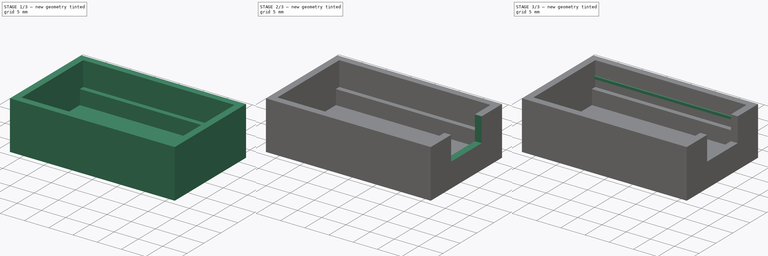
[diagram: build sequence overview — one tinted view per stage of 3, left to right]
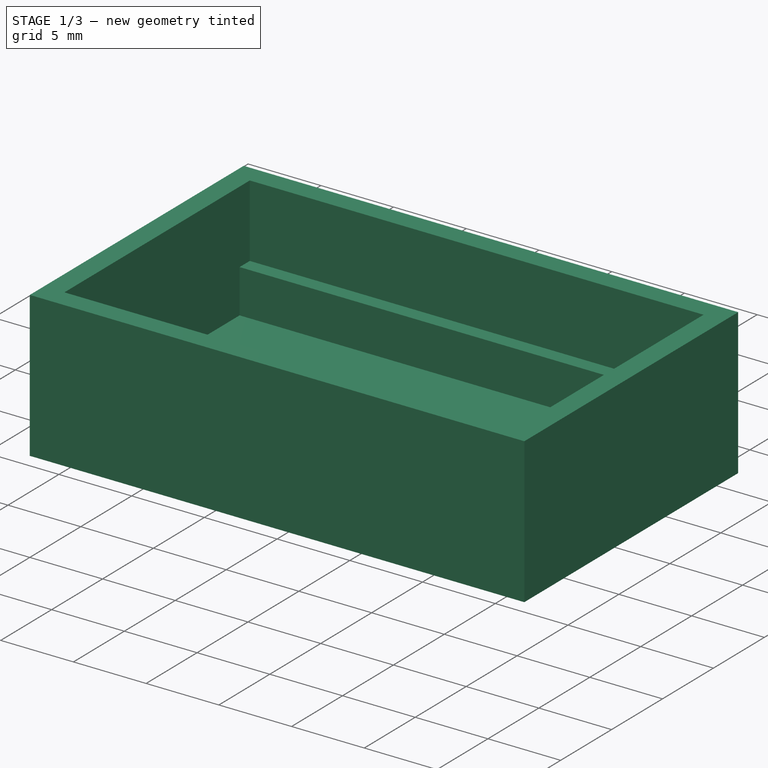
[diagram: stage 1 of 3 — iso view after this stage's code; geometry added in this stage tinted green]
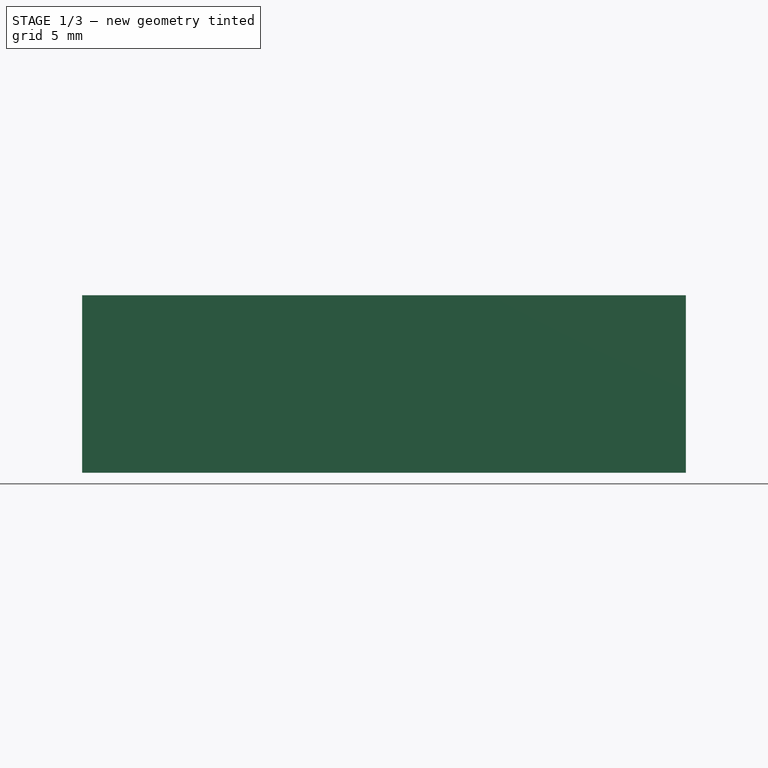
[diagram: stage 1 of 3 — front view after this stage's code; geometry added in this stage tinted green]
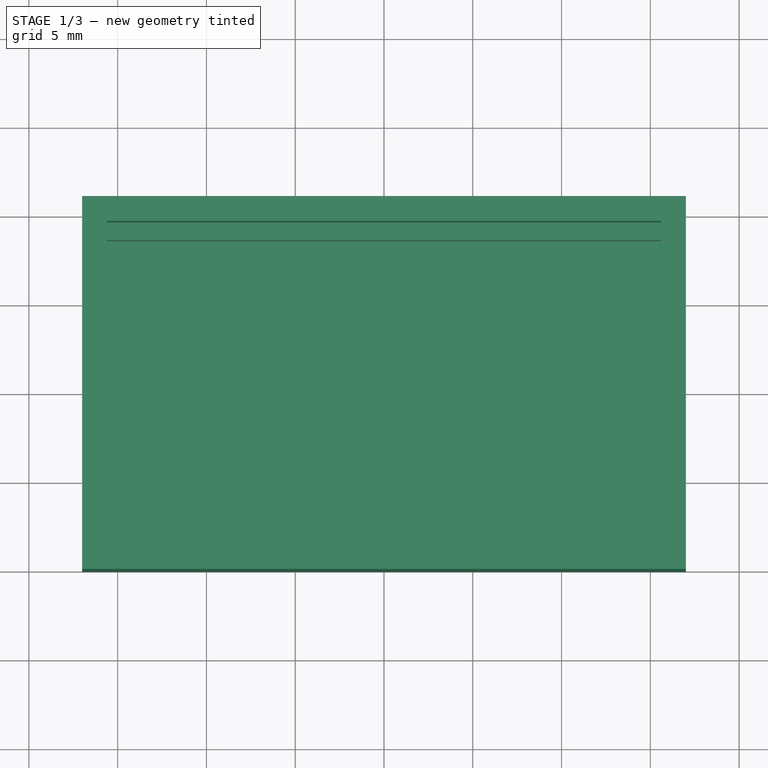
[diagram: stage 1 of 3 — top view after this stage's code; geometry added in this stage tinted green]
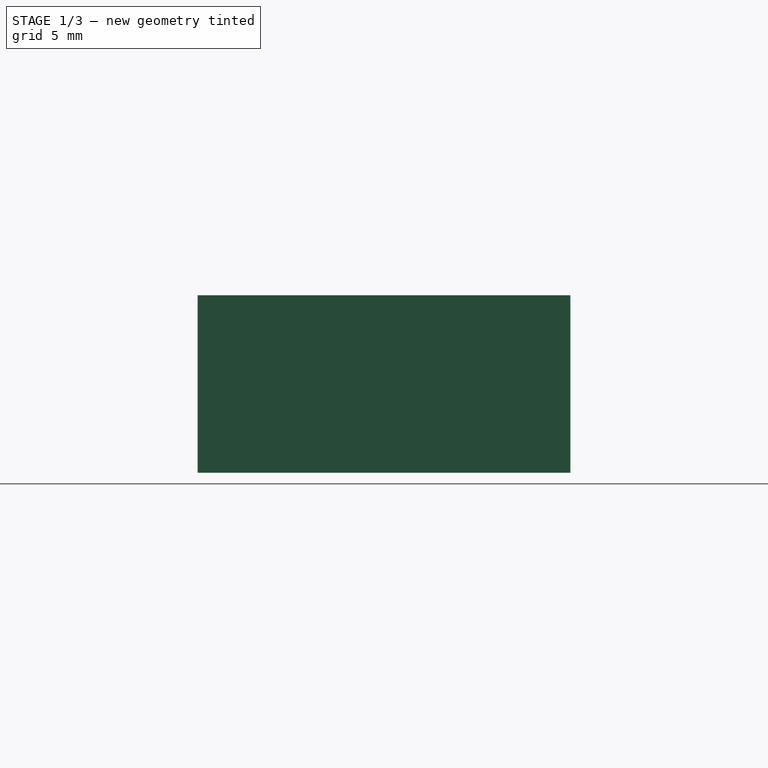
[diagram: stage 1 of 3 — right view after this stage's code; geometry added in this stage tinted green]
FCSTD DOCUMENT  (FreeCAD 0.21R33771 (Git))
Label: крепёж charger
License: All rights reserved
LicenseURL: https://en.wikipedia.org/wiki/All_rights_reserved
objects: Sketcher::SketchObject×8, PartDesign::Pad×5, PartDesign::Pocket×3, PartDesign::Body×1
note: 25 computed .brp shape members not serialized (recipe doc carries the construction recipe); baked Part::Feature solids carry a one-line shape summary decoded from their .brp

FEATURE [Sketcher::SketchObject] Sketch
  FullyConstrained = true
  MapMode = 5
  Support = -> [XY_Plane]
  sketch-geometry (4):
    g0: LineSegment StartX=-17 StartY=21 StartZ=0 EndX=17 EndY=21 EndZ=0
    g1: LineSegment StartX=17 StartY=21 StartZ=0 EndX=17 EndY=0 EndZ=0
    g2: LineSegment StartX=17 StartY=0 StartZ=0 EndX=-17 EndY=0 EndZ=0
    g3: LineSegment StartX=-17 StartY=0 StartZ=0 EndX=-17 EndY=21 EndZ=0
  constraints (11):
    c: Coincident(g0,g1)
    c: Coincident(g1,g2)
    c: Coincident(g2,g3)
    c: Coincident(g3,g0)
    c: Horizontal(g0)
    c: Horizontal(g2)
    c: Vertical(g1)
    c: Vertical(g3)
    c: DistanceX(g0,g0) = 34
    c: DistanceY(g2,g0) = 21
    c: Symmetric(g2,g1,g-1)
FEATURE [PartDesign::Pad] Pad
  Direction = (0,0,1)
  Length = 10
  Length2 = 10
  Profile = -> Sketch
  ReferenceAxis = -> Sketch [N_Axis]
  Type = 0
FEATURE [Sketcher::SketchObject] Sketch001
  ExternalGeometry = -> [Pad]
  FullyConstrained = true
  MapMode = 5
  Placement = pos=(0,0,10) rot=(0,0,1;0rad)
  Support = -> [Pad]
  sketch-geometry (4):
    g0: LineSegment StartX=-15.6 StartY=19.6 StartZ=0 EndX=15.6 EndY=19.6 EndZ=0
    g1: LineSegment StartX=15.6 StartY=19.6 StartZ=0 EndX=15.6 EndY=1.4 EndZ=0
    g2: LineSegment StartX=15.6 StartY=1.4 StartZ=0 EndX=-15.6 EndY=1.4 EndZ=0
    g3: LineSegment StartX=-15.6 StartY=1.4 StartZ=0 EndX=-15.6 EndY=19.6 EndZ=0
  constraints (12):
    c: Coincident(g0,g1)
    c: Coincident(g1,g2)
    c: Coincident(g2,g3)
    c: Coincident(g3,g0)
    c: Horizontal(g0)
    c: Horizontal(g2)
    c: Vertical(g1)
    c: Vertical(g3)
    c: DistanceY(g2,g0) = 18.2
    c: DistanceX(g0,g0) = 31.2
    c: DistanceX(g-4,g0) = 1.4
    c: DistanceY(g0,g-4) = 1.4
FEATURE [PartDesign::Pocket] Pocket
  BaseFeature = -> Pad
  Direction = (0,0,-1)
  Length = 8
  Length2 = 5
  Profile = -> Sketch001
  ReferenceAxis = -> Sketch001 [N_Axis]
  Type = 0
FEATURE [Sketcher::SketchObject] Sketch002
  ExternalGeometry = -> [Pocket]
  FullyConstrained = false
  MapMode = 5
  Placement = pos=(0,0,2) rot=(0,0,1;0rad)
  Support = -> [Pocket]
  sketch-geometry (4):
    g0: LineSegment StartX=-15.6 StartY=19.6 StartZ=0 EndX=15.592 EndY=19.6 EndZ=0
    g1: LineSegment StartX=15.592 StartY=19.6 StartZ=0 EndX=15.592 EndY=18.6 EndZ=0
    g2: LineSegment StartX=15.592 StartY=18.6 StartZ=0 EndX=-15.6 EndY=18.6 EndZ=0
    g3: LineSegment StartX=-15.6 StartY=18.6 StartZ=0 EndX=-15.6 EndY=19.6 EndZ=0
  constraints (10):
    c: Coincident(g0,g1)
    c: Coincident(g1,g2)
    c: Coincident(g2,g3)
    c: Coincident(g3,g0)
    c: Horizontal(g0)
    c: Horizontal(g2)
    c: Vertical(g1)
    c: Vertical(g3)
    c: Coincident(g0,g-3)
    c: DistanceY(g1,g0) = 1
FEATURE [PartDesign::Pad] Pad001
  BaseFeature = -> Pocket
  Direction = (0,0,1)
  Length = 3
  Length2 = 10
  Profile = -> Sketch002
  ReferenceAxis = -> Sketch002 [N_Axis]
  Type = 0
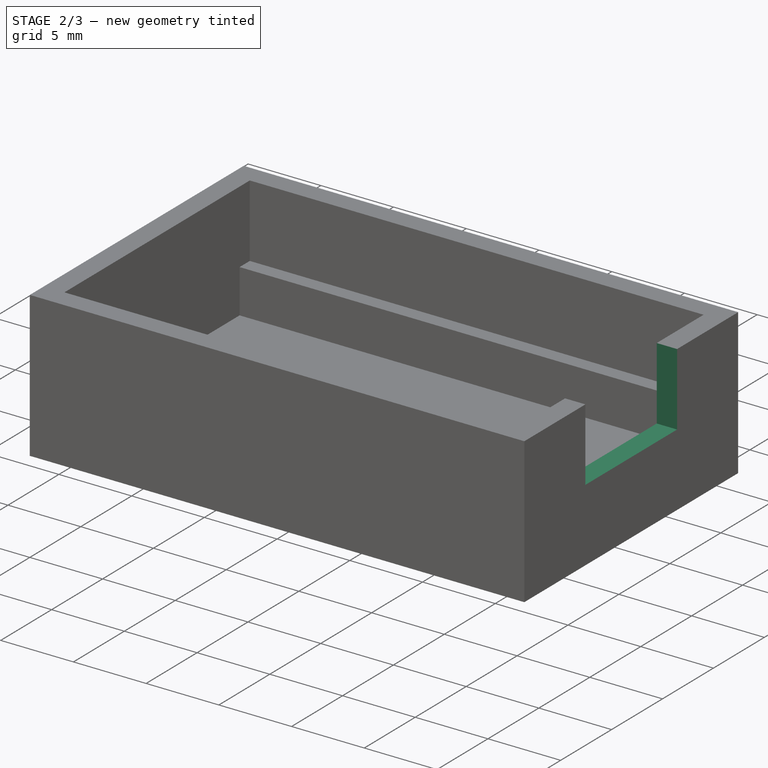
[diagram: stage 2 of 3 — iso view after this stage's code; geometry added in this stage tinted green]
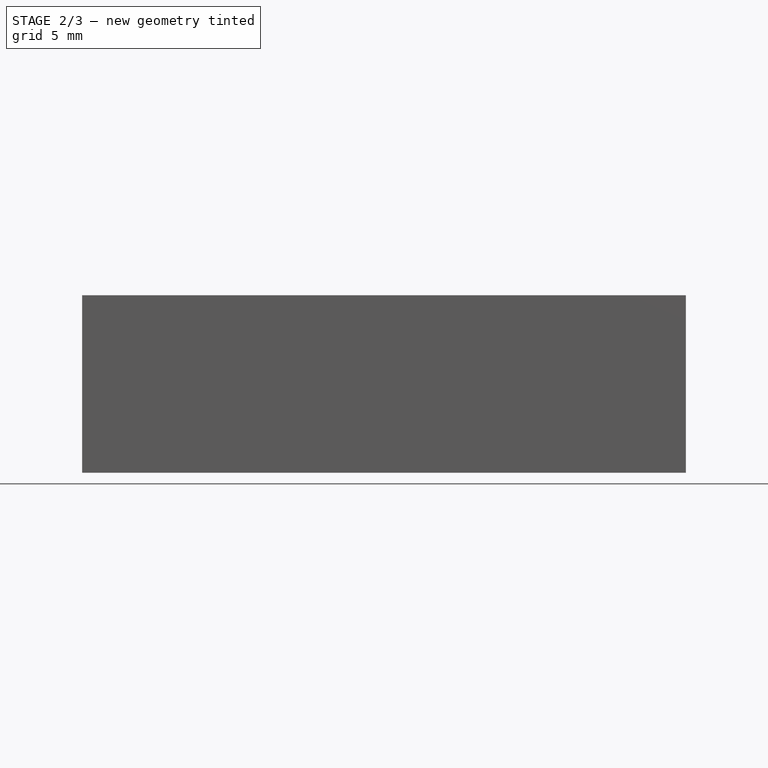
[diagram: stage 2 of 3 — front view after this stage's code; geometry added in this stage tinted green]
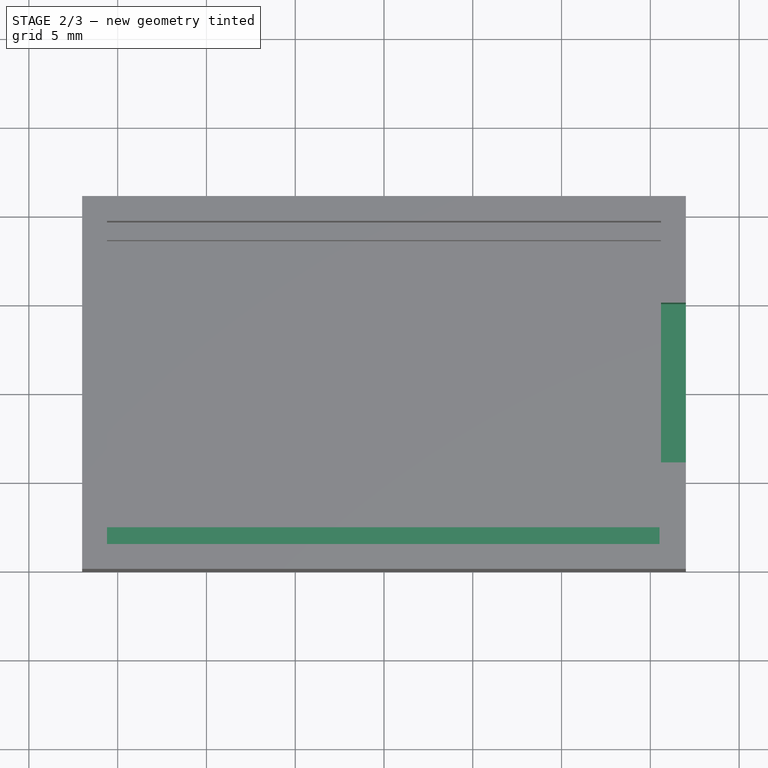
[diagram: stage 2 of 3 — top view after this stage's code; geometry added in this stage tinted green]
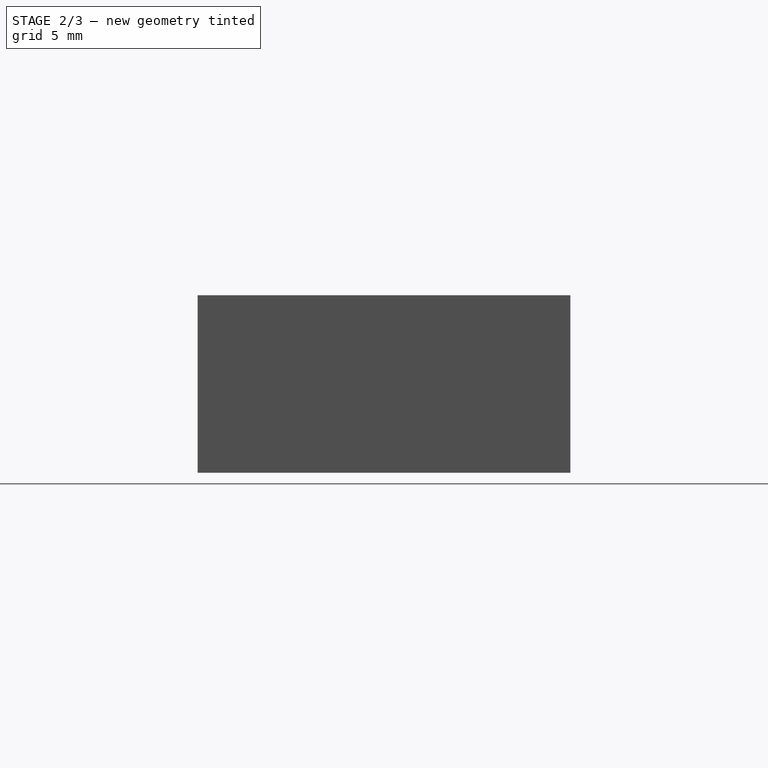
[diagram: stage 2 of 3 — right view after this stage's code; geometry added in this stage tinted green]
FEATURE [Sketcher::SketchObject] Sketch003
  ExternalGeometry = -> [Pad001]
  FullyConstrained = false
  MapMode = 5
  Placement = pos=(0,0,2) rot=(0,0,1;0rad)
  Support = -> [Pad001]
  sketch-geometry (4):
    g0: LineSegment StartX=-15.6758 StartY=2.43189 StartZ=0 EndX=15.5163 EndY=2.43189 EndZ=0
    g1: LineSegment StartX=15.5163 StartY=2.43189 StartZ=0 EndX=15.5163 EndY=1.43189 EndZ=0
    g2: LineSegment StartX=15.5163 StartY=1.43189 StartZ=0 EndX=-15.6758 EndY=1.43189 EndZ=0
    g3: LineSegment StartX=-15.6758 StartY=1.43189 StartZ=0 EndX=-15.6758 EndY=2.43189 EndZ=0
  constraints (10):
    c: Coincident(g0,g1)
    c: Coincident(g1,g2)
    c: Coincident(g2,g3)
    c: Coincident(g3,g0)
    c: Horizontal(g0)
    c: Horizontal(g2)
    c: Vertical(g1)
    c: Vertical(g3)
    c: Equal(g0,g-3)
    c: DistanceY(g1,g0) = 1
FEATURE [PartDesign::Pad] Pad002
  BaseFeature = -> Pad001
  Direction = (0,0,1)
  Length = 3
  Length2 = 10
  Profile = -> Sketch003
  ReferenceAxis = -> Sketch003 [N_Axis]
  Type = 0
FEATURE [Sketcher::SketchObject] Sketch004
  ExternalGeometry = -> [Pad002]
  FullyConstrained = true
  MapMode = 5
  Placement = pos=(17,0,0) rot=(0.57735,0.57735,0.57735;2.0944rad)
  Support = -> [Pad002]
  sketch-geometry (4):
    g0: LineSegment StartX=6 StartY=5 StartZ=0 EndX=15 EndY=5 EndZ=0
    g1: LineSegment StartX=15 StartY=5 StartZ=0 EndX=15 EndY=10 EndZ=0
    g2: LineSegment StartX=15 StartY=10 StartZ=0 EndX=6 EndY=10 EndZ=0
    g3: LineSegment StartX=6 StartY=10 StartZ=0 EndX=6 EndY=5 EndZ=0
  constraints (12):
    c: Coincident(g0,g1)
    c: Coincident(g1,g2)
    c: Coincident(g2,g3)
    c: Coincident(g3,g0)
    c: Horizontal(g0)
    c: Horizontal(g2)
    c: Vertical(g1)
    c: Vertical(g3)
    c: PointOnObject(g1,g-3)
    c: DistanceY(g0,g1) = 5
    c: DistanceX(g0,g0) = 9
    c: DistanceX(g-4,g2) = 6
FEATURE [PartDesign::Pocket] Pocket001
  BaseFeature = -> Pad002
  Direction = (-1,0,0)
  Length = 5
  Length2 = 5
  Profile = -> Sketch004
  ReferenceAxis = -> Sketch004 [N_Axis]
  Type = 0
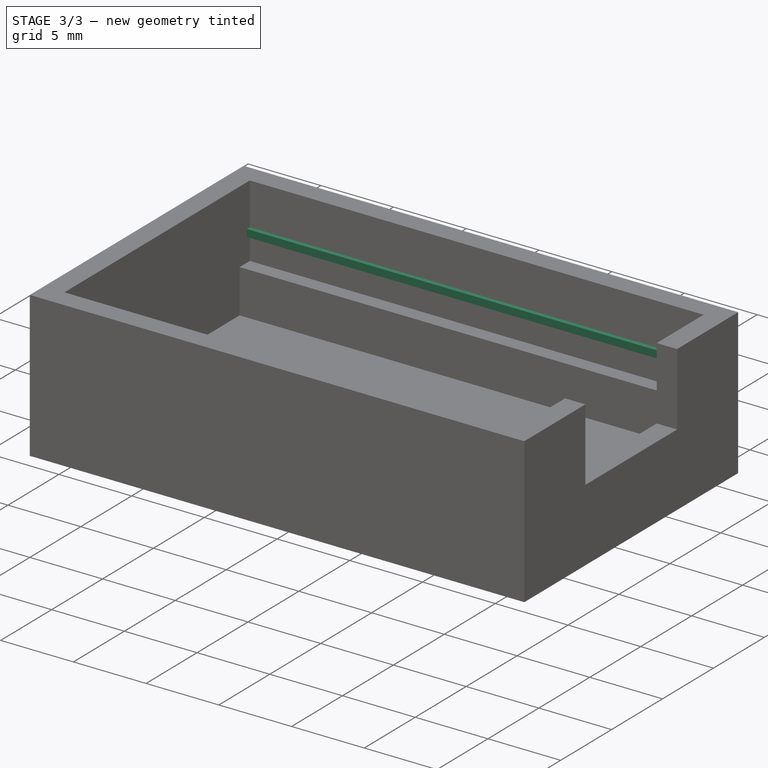
[diagram: stage 3 of 3 — iso view after this stage's code; geometry added in this stage tinted green]
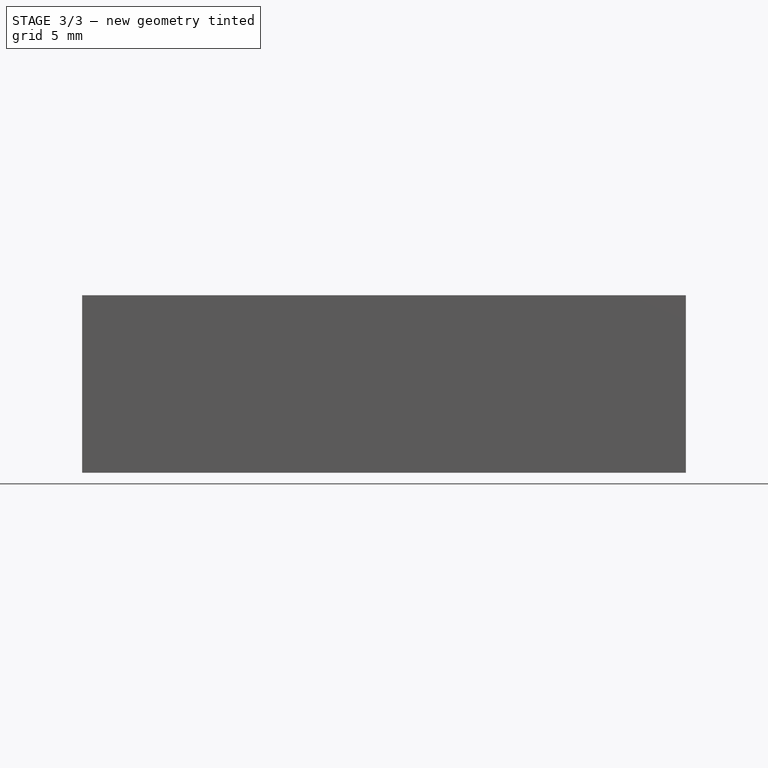
[diagram: stage 3 of 3 — front view after this stage's code; geometry added in this stage tinted green]
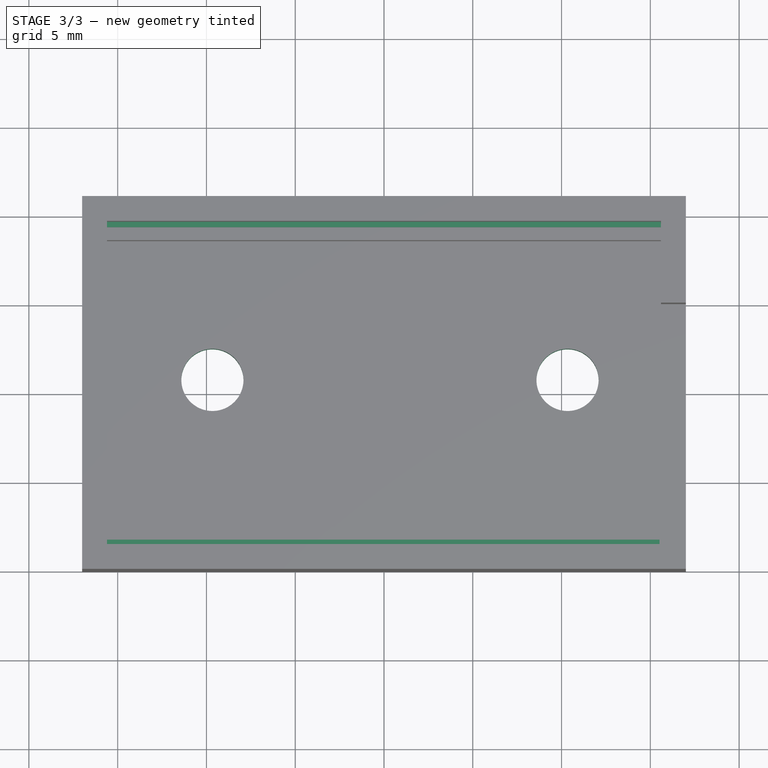
[diagram: stage 3 of 3 — top view after this stage's code; geometry added in this stage tinted green]
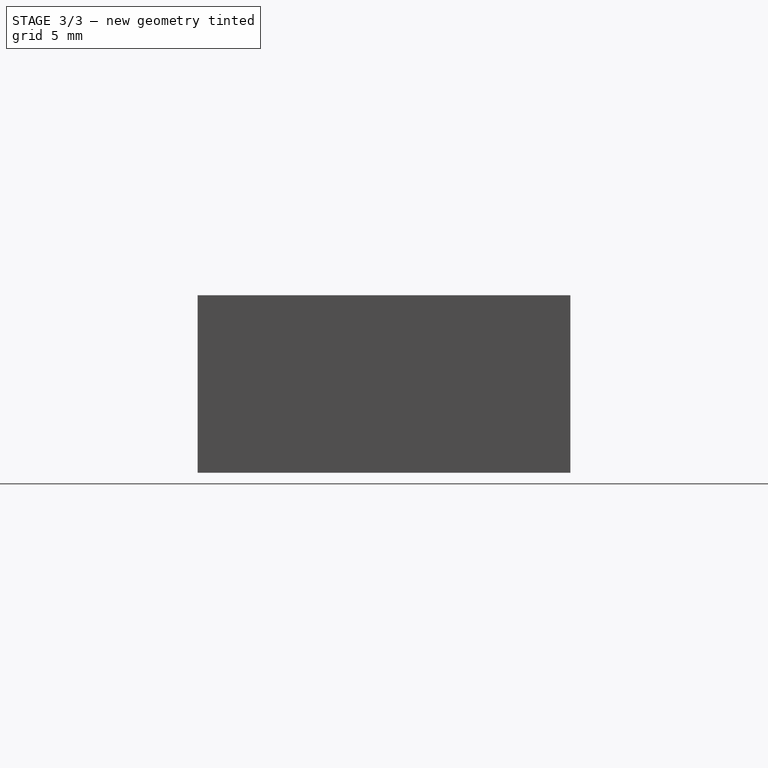
[diagram: stage 3 of 3 — right view after this stage's code; geometry added in this stage tinted green]
FEATURE [Sketcher::SketchObject] Sketch005
  ExternalGeometry = -> [Pocket001]
  FullyConstrained = true
  MapMode = 5
  Placement = pos=(0,19.6,0) rot=(1,0,0;1.5708rad)
  Support = -> [Pocket001]
  sketch-geometry (4):
    g0: LineSegment StartX=-15.6 StartY=7.1 StartZ=0 EndX=15.592 EndY=7.1 EndZ=0
    g1: LineSegment StartX=15.592 StartY=7.1 StartZ=0 EndX=15.592 EndY=6.6 EndZ=0
    g2: LineSegment StartX=15.592 StartY=6.6 StartZ=0 EndX=-15.6 EndY=6.6 EndZ=0
    g3: LineSegment StartX=-15.6 StartY=6.6 StartZ=0 EndX=-15.6 EndY=7.1 EndZ=0
  constraints (12):
    c: Coincident(g0,g1)
    c: Coincident(g1,g2)
    c: Coincident(g2,g3)
    c: Coincident(g3,g0)
    c: Horizontal(g0)
    c: Horizontal(g2)
    c: Vertical(g1)
    c: Vertical(g3)
    c: Equal(g2,g-3)
    c: Vertical(g1,g-3)
    c: DistanceY(g-3,g1) = 1.6
    c: DistanceY(g2,g0) = 0.5
FEATURE [PartDesign::Pad] Pad003
  BaseFeature = -> Pocket001
  Direction = (0,-1,2e-16)
  Length = 0.3
  Length2 = 10
  Profile = -> Sketch005
  ReferenceAxis = -> Sketch005 [N_Axis]
  Type = 0
FEATURE [Sketcher::SketchObject] Sketch006
  ExternalGeometry = -> [Pad003]
  FullyConstrained = true
  MapMode = 5
  Placement = pos=(0,1.4,0) rot=(0,0.707107,0.707107;3.14159rad)
  Support = -> [Pad003]
  sketch-geometry (4):
    g0: LineSegment StartX=-15.5163 StartY=7.1 StartZ=0 EndX=15.6 EndY=7.1 EndZ=0
    g1: LineSegment StartX=15.6 StartY=7.1 StartZ=0 EndX=15.6 EndY=6.6 EndZ=0
    g2: LineSegment StartX=15.6 StartY=6.6 StartZ=0 EndX=-15.5163 EndY=6.6 EndZ=0
    g3: LineSegment StartX=-15.5163 StartY=6.6 StartZ=0 EndX=-15.5163 EndY=7.1 EndZ=0
  constraints (12):
    c: Coincident(g0,g1)
    c: Coincident(g1,g2)
    c: Coincident(g2,g3)
    c: Coincident(g3,g0)
    c: Horizontal(g0)
    c: Horizontal(g2)
    c: Vertical(g1)
    c: Vertical(g3)
    c: Equal(g2,g-3)
    c: Vertical(g1,g-3)
    c: DistanceY(g-3,g1) = 1.6
    c: DistanceY(g1,g0) = 0.5
FEATURE [PartDesign::Pad] Pad004
  BaseFeature = -> Pad003
  Direction = (0,1,-2e-16)
  Length = 0.3
  Length2 = 10
  Profile = -> Sketch006
  ReferenceAxis = -> Sketch006 [N_Axis]
  Type = 0
FEATURE [Sketcher::SketchObject] Sketch007
  ExternalGeometry = -> [Pad004]
  FullyConstrained = false
  MapMode = 5
  Placement = pos=(0,0,2) rot=(0,0,1;0rad)
  Support = -> [Pad004]
  sketch-geometry (2):
    g0: Circle CenterX=-9.66378 CenterY=10.7819 CenterZ=0 NormalX=0 NormalY=0 NormalZ=1 AngleXU=0 Radius=1.75
    g1: Circle CenterX=10.3362 CenterY=10.7819 CenterZ=0 NormalX=0 NormalY=0 NormalZ=1 AngleXU=0 Radius=1.75
  constraints (5):
    c: Diameter(g0) = 3.5
    c: Equal(g1,g0)
    c: Horizontal(g1,g0)
    c: DistanceX(g0,g1) = 20
    c: DistanceY(g-4,g0) = 8.35
FEATURE [PartDesign::Pocket] Pocket002
  BaseFeature = -> Pad004
  Direction = (0,0,-1)
  Length = 5
  Length2 = 5
  Profile = -> Sketch007
  ReferenceAxis = -> Sketch007 [N_Axis]
  Type = 0
FEATURE [PartDesign::Body] Body
  Group = -> [Sketch,Pad,Sketch001,Pocket,Sketch002,Pad001,Sketch003,Pad002,Sketch004,Pocket001,Sketch005,Pad003,Sketch006,Pad004,Sketch007,Pocket002]
  Origin = -> Origin
  Tip = -> Pocket002
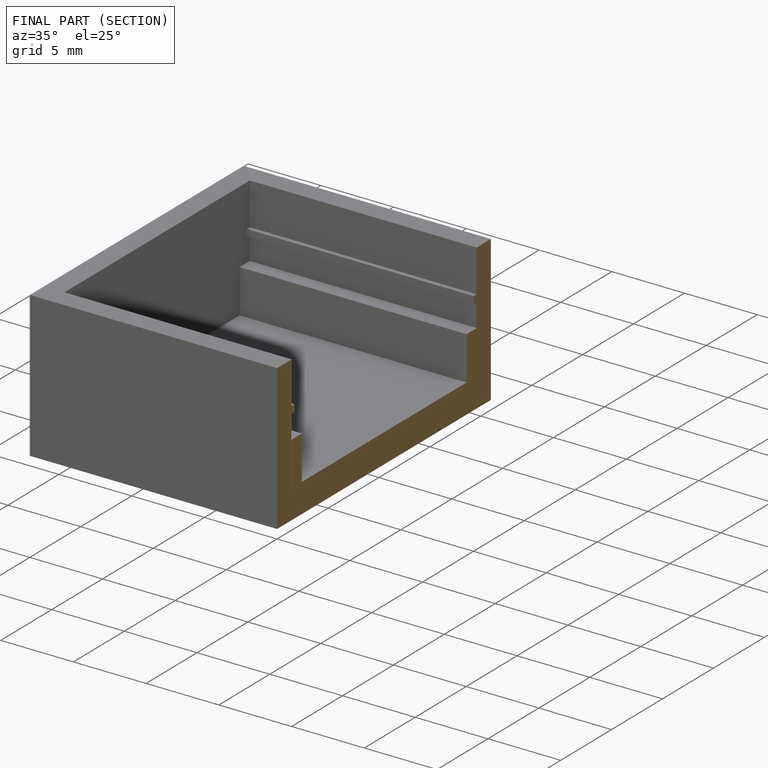
[diagram: finished part — half-section view (interior)]
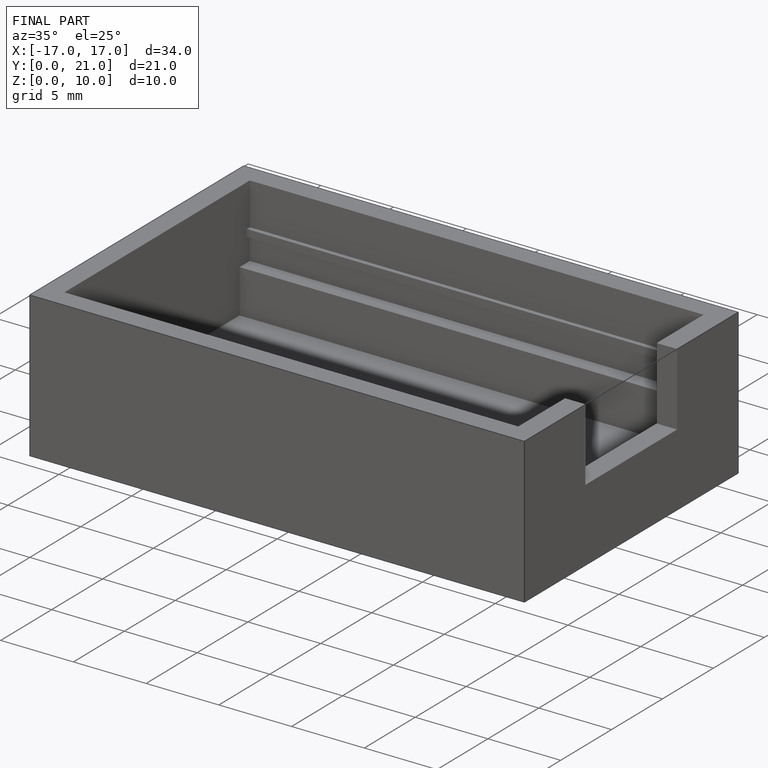
[diagram: finished part — iso view with bounding-box wireframe]
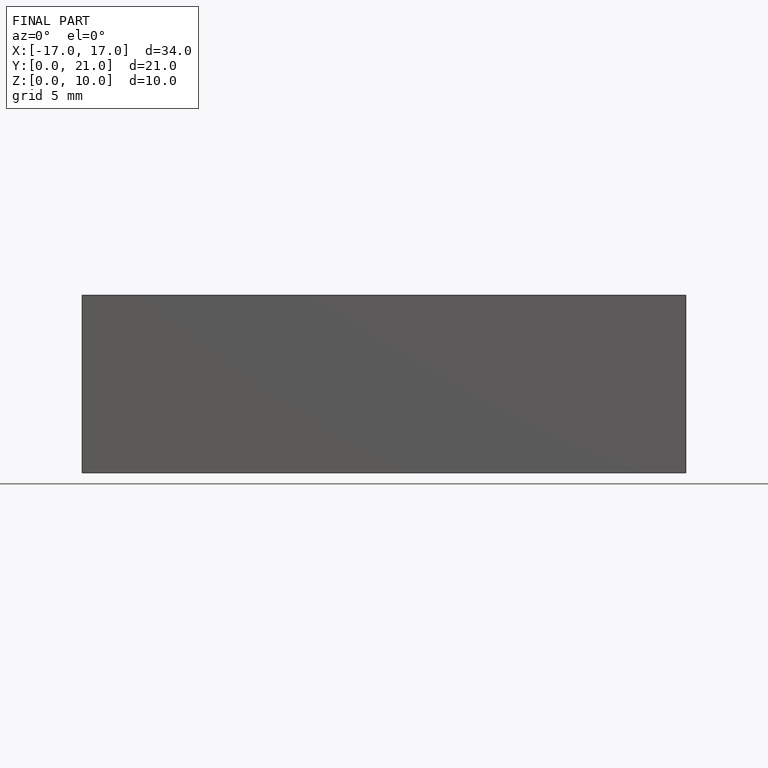
[diagram: finished part — front view with bounding-box wireframe]
